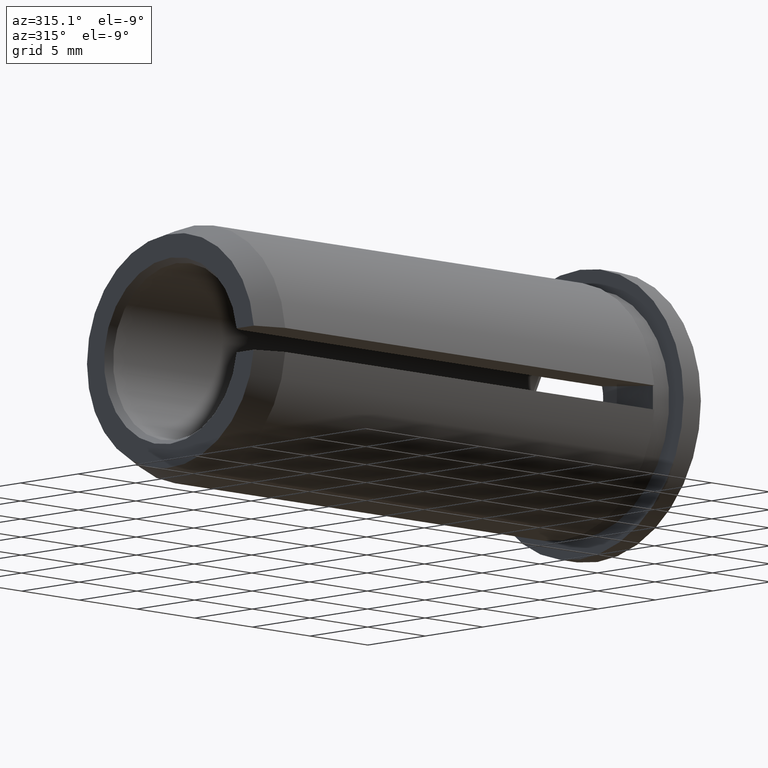
[diagram: clean part render]
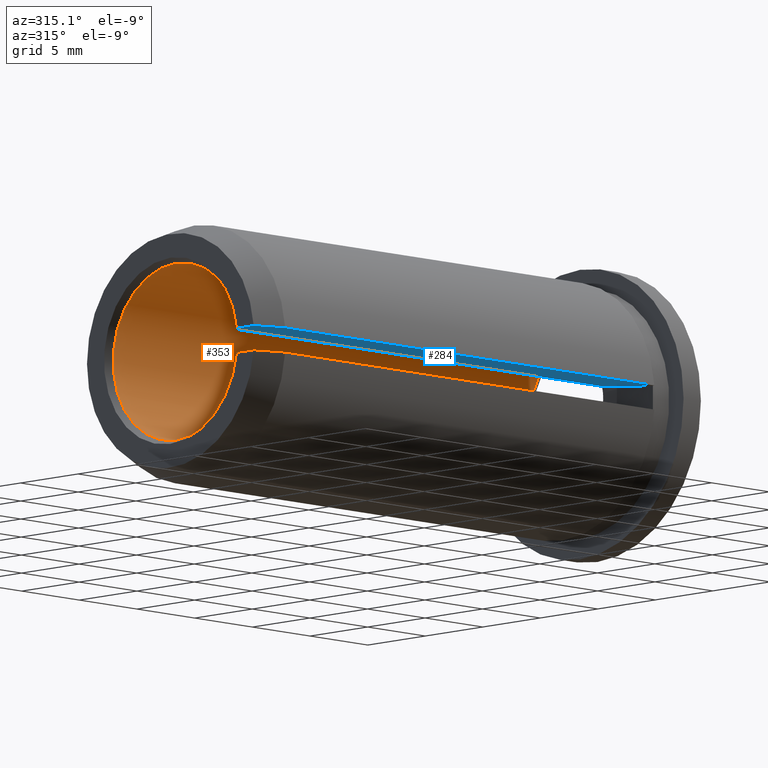
[diagram: same view with the hole feature highlighted: cylindrical wall and planar end face, labeled with their STEP entity ids]
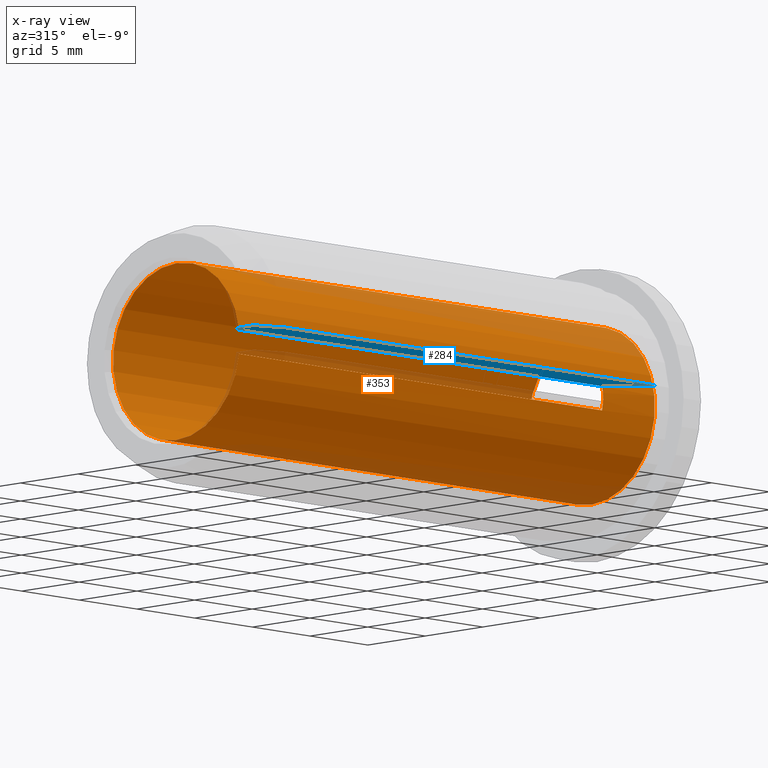
[diagram: x-ray of the same camera — body ghosted, the hole faces saturated]
A machine part, auxiliary view. The highlighted faces form one hole feature of diameter 11 mm: the cylindrical wall (entity #353, orange) and its adjacent planar end face (entity #284, blue) — they share a circular edge in the B-rep.
The next image is the same camera in x-ray (body ghosted, the hole faces saturated) — the bore reads through the body.
Wall:
#5 = CARTESIAN_POINT ( 'NONE',  ( -5.026359045876161800, -5.448623679425841400, -0.7500000000000000000 ) ) ;
#24 = CARTESIAN_POINT ( 'NONE',  ( -36.50000000000000000, -5.448623679425841400, -0.7500000000000000000 ) ) ;
#25 = LINE ( 'NONE', #48, #281 ) ;
#35 = CARTESIAN_POINT ( 'NONE',  ( -4.961795163846606900, -5.517448399587009600, 0.2500000000000010000 ) ) ;
#37 = EDGE_CURVE ( 'NONE', #159, #406, #178, .T. ) ;
#48 = CARTESIAN_POINT ( 'NONE',  ( -38.58775536857143600, -5.448623679425841400, -0.7500000000000000000 ) ) ;
#56 = ORIENTED_EDGE ( 'NONE', *, *, #369, .T. ) ;
#58 = EDGE_CURVE ( 'NONE', #231, #231, #208, .T. ) ;
#61 = EDGE_LOOP ( 'NONE', ( #363 ) ) ;
#73 = CARTESIAN_POINT ( 'NONE',  ( -38.58775536857143600, -5.448623679425841400, 0.7500000000000000000 ) ) ;
#83 = FACE_OUTER_BOUND ( 'NONE', #61, .T. ) ;
#91 = ORIENTED_EDGE ( 'NONE', *, *, #325, .T. ) ;
#100 = CARTESIAN_POINT ( 'NONE',  ( -5.026359045876161800, -5.448623679425841400, 0.7500000000000000000 ) ) ;
#103 = DIRECTION ( 'NONE',  ( 0.0000000000000000000, 0.0000000000000000000, 1.000000000000000000 ) ) ;
#107 = CIRCLE ( 'NONE', #350, 5.500000000000000000 ) ;
#121 = DIRECTION ( 'NONE',  ( 1.000000000000000000, 0.0000000000000000000, 0.0000000000000000000 ) ) ;
#122 = DIRECTION ( 'NONE',  ( 0.0000000000000000000, 0.0000000000000000000, 1.000000000000000000 ) ) ;
#144 = DIRECTION ( 'NONE',  ( -1.000000000000000000, -0.0000000000000000000, -0.0000000000000000000 ) ) ;
#148 = VERTEX_POINT ( 'NONE', #151 ) ;
#151 = CARTESIAN_POINT ( 'NONE',  ( -36.50000000000000000, -5.448623679425841400, 0.7500000000000000000 ) ) ;
#159 = VERTEX_POINT ( 'NONE', #381 ) ;
#160 = EDGE_CURVE ( 'NONE', #148, #406, #335, .T. ) ;
#178 = B_SPLINE_CURVE_WITH_KNOTS ( 'NONE', 3,
 ( #5, #302, #35, #100 ),
 .UNSPECIFIED., .F., .F.,
 ( 4, 4 ),
 ( 0.0000000000000000000, 0.001500000000000000000 ),
 .UNSPECIFIED. ) ;
#182 = DIRECTION ( 'NONE',  ( 1.000000000000000000, 0.0000000000000000000, 0.0000000000000000000 ) ) ;
#205 = CARTESIAN_POINT ( 'NONE',  ( -0.5000000000000004400, 0.0000000000000000000, 0.0000000000000000000 ) ) ;
#208 = CIRCLE ( 'NONE', #233, 5.500000000000000000 ) ;
#227 = FACE_OUTER_BOUND ( 'NONE', #312, .T. ) ;
#231 = VERTEX_POINT ( 'NONE', #324 ) ;
#233 = AXIS2_PLACEMENT_3D ( 'NONE', #205, #144, #103 ) ;
#244 = ORIENTED_EDGE ( 'NONE', *, *, #37, .T. ) ;
#245 = CARTESIAN_POINT ( 'NONE',  ( -38.58775536857143600, 0.0000000000000000000, 0.0000000000000000000 ) ) ;
#262 = ORIENTED_EDGE ( 'NONE', *, *, #160, .F. ) ;
#281 = VECTOR ( 'NONE', #121, 1000.000000000000000 ) ;
#286 = CYLINDRICAL_SURFACE ( 'NONE', #303, 5.500000000000000000 ) ;
#302 = CARTESIAN_POINT ( 'NONE',  ( -4.961795163846599800, -5.517448399587010500, -0.2499999999999996700 ) ) ;
#303 = AXIS2_PLACEMENT_3D ( 'NONE', #245, #313, #418 ) ;
#312 = EDGE_LOOP ( 'NONE', ( #56, #91, #244, #262 ) ) ;
#313 = DIRECTION ( 'NONE',  ( -1.000000000000000000, -0.0000000000000000000, -0.0000000000000000000 ) ) ;
#316 = DIRECTION ( 'NONE',  ( -1.000000000000000000, -0.0000000000000000000, -0.0000000000000000000 ) ) ;
#324 = CARTESIAN_POINT ( 'NONE',  ( -0.5000000000000004400, 0.0000000000000000000, 5.500000000000000000 ) ) ;
#325 = EDGE_CURVE ( 'NONE', #394, #159, #25, .T. ) ;
#335 = LINE ( 'NONE', #73, #366 ) ;
#350 = AXIS2_PLACEMENT_3D ( 'NONE', #384, #316, #122 ) ;
#353 = ADVANCED_FACE ( 'NONE', ( #83, #227 ), #286, .F. ) ;
#356 = CARTESIAN_POINT ( 'NONE',  ( -5.026359045876161800, -5.448623679425841400, 0.7500000000000000000 ) ) ;
#363 = ORIENTED_EDGE ( 'NONE', *, *, #58, .F. ) ;
#366 = VECTOR ( 'NONE', #182, 1000.000000000000000 ) ;
#369 = EDGE_CURVE ( 'NONE', #148, #394, #107, .T. ) ;
#381 = CARTESIAN_POINT ( 'NONE',  ( -5.026359045876161800, -5.448623679425841400, -0.7500000000000000000 ) ) ;
#384 = CARTESIAN_POINT ( 'NONE',  ( -36.50000000000000000, 0.0000000000000000000, 0.0000000000000000000 ) ) ;
#394 = VERTEX_POINT ( 'NONE', #24 ) ;
#406 = VERTEX_POINT ( 'NONE', #356 ) ;
#418 = DIRECTION ( 'NONE',  ( 0.0000000000000000000, 0.0000000000000000000, 1.000000000000000000 ) ) ;
End face:
#10 = B_SPLINE_CURVE_WITH_KNOTS ( 'NONE', 3,
 ( #270, #239, #271, #413 ),
 .UNSPECIFIED., .F., .F.,
 ( 4, 4 ),
 ( 0.009711911398750116400, 0.01184148182100318500 ),
 .UNSPECIFIED. ) ;
#20 = DIRECTION ( 'NONE',  ( 0.0000000000000000000, 1.000000000000000000, 0.0000000000000000000 ) ) ;
#33 = LINE ( 'NONE', #234, #378 ) ;
#36 = CARTESIAN_POINT ( 'NONE',  ( -37.00000000000000000, -5.739883257861286800, 0.7500000000000000000 ) ) ;
#65 = VECTOR ( 'NONE', #20, 1000.000000000000000 ) ;
#67 = AXIS2_PLACEMENT_3D ( 'NONE', #129, #130, #253 ) ;
#71 = EDGE_CURVE ( 'NONE', #171, #275, #294, .T. ) ;
#73 = CARTESIAN_POINT ( 'NONE',  ( -38.58775536857143600, -5.448623679425841400, 0.7500000000000000000 ) ) ;
#75 = CARTESIAN_POINT ( 'NONE',  ( -36.83331444535005500, -5.642829254337529600, 0.7500000000000000000 ) ) ;
#82 = DIRECTION ( 'NONE',  ( -1.000000000000000000, 0.0000000000000000000, 0.0000000000000000000 ) ) ;
#101 = VERTEX_POINT ( 'NONE', #36 ) ;
#110 = EDGE_CURVE ( 'NONE', #275, #379, #33, .T. ) ;
#115 = ORIENTED_EDGE ( 'NONE', *, *, #170, .T. ) ;
#129 = CARTESIAN_POINT ( 'NONE',  ( -27.99999999999999600, -27.00000000000000000, 0.7500000000000000000 ) ) ;
#130 = DIRECTION ( 'NONE',  ( 0.0000000000000000000, 0.0000000000000000000, 1.000000000000000000 ) ) ;
#148 = VERTEX_POINT ( 'NONE', #151 ) ;
#151 = CARTESIAN_POINT ( 'NONE',  ( -36.50000000000000000, -5.448623679425841400, 0.7500000000000000000 ) ) ;
#154 = PLANE ( 'NONE',  #279 ) ;
#160 = EDGE_CURVE ( 'NONE', #148, #406, #335, .T. ) ;
#163 = ORIENTED_EDGE ( 'NONE', *, *, #160, .T. ) ;
#170 = EDGE_CURVE ( 'NONE', #101, #148, #269, .T. ) ;
#171 = VERTEX_POINT ( 'NONE', #408 ) ;
#172 = ORIENTED_EDGE ( 'NONE', *, *, #410, .F. ) ;
#180 = CARTESIAN_POINT ( 'NONE',  ( -36.50000000000000000, -5.448623679425841400, 0.7500000000000000000 ) ) ;
#182 = DIRECTION ( 'NONE',  ( 1.000000000000000000, 0.0000000000000000000, 0.0000000000000000000 ) ) ;
#186 = FACE_OUTER_BOUND ( 'NONE', #232, .T. ) ;
#187 = CARTESIAN_POINT ( 'NONE',  ( -27.99999999999999600, -27.00000000000000000, 0.7500000000000000000 ) ) ;
#192 = ORIENTED_EDGE ( 'NONE', *, *, #110, .T. ) ;
#193 = ORIENTED_EDGE ( 'NONE', *, *, #215, .T. ) ;
#215 = EDGE_CURVE ( 'NONE', #379, #358, #10, .T. ) ;
#216 = CARTESIAN_POINT ( 'NONE',  ( -34.99999999999999300, -7.964766161036994400, 0.7500000000000000000 ) ) ;
#223 = CIRCLE ( 'NONE', #67, 31.50000000000000700 ) ;
#232 = EDGE_LOOP ( 'NONE', ( #163, #172, #327, #192, #193, #307, #115 ) ) ;
#234 = CARTESIAN_POINT ( 'NONE',  ( -38.58775536857143600, -7.964766161036994400, 0.7500000000000000000 ) ) ;
#237 = LINE ( 'NONE', #315, #65 ) ;
#239 = CARTESIAN_POINT ( 'NONE',  ( -35.66670156923833400, -7.721033178614087300, 0.7500000000000000000 ) ) ;
#253 = DIRECTION ( 'NONE',  ( -1.000000000000000000, 0.0000000000000000000, 0.0000000000000000000 ) ) ;
#266 = DIRECTION ( 'NONE',  ( -1.000000000000000000, -0.0000000000000000000, -0.0000000000000000000 ) ) ;
#269 = B_SPLINE_CURVE_WITH_KNOTS ( 'NONE', 3,
 ( #405, #75, #345, #180 ),
 .UNSPECIFIED., .F., .F.,
 ( 4, 4 ),
 ( 0.006318320823388439600, 0.006896967145803828600 ),
 .UNSPECIFIED. ) ;
#270 = CARTESIAN_POINT ( 'NONE',  ( -34.99999999999999300, -7.964766161036994400, 0.7500000000000000000 ) ) ;
#271 = CARTESIAN_POINT ( 'NONE',  ( -36.33337186691171900, -7.477214302540265800, 0.7500000000000000000 ) ) ;
#274 = VECTOR ( 'NONE', #336, 1000.000000000000000 ) ;
#275 = VERTEX_POINT ( 'NONE', #322 ) ;
#279 = AXIS2_PLACEMENT_3D ( 'NONE', #187, #355, #82 ) ;
#284 = ADVANCED_FACE ( 'NONE', ( #186 ), #154, .T. ) ;
#294 = LINE ( 'NONE', #298, #274 ) ;
#298 = CARTESIAN_POINT ( 'NONE',  ( -3.000000000000000900, 7.750000000000000000, 0.7500000000000000000 ) ) ;
#307 = ORIENTED_EDGE ( 'NONE', *, *, #334, .T. ) ;
#315 = CARTESIAN_POINT ( 'NONE',  ( -37.00000000000000000, 7.272059531467589500, 0.7500000000000000000 ) ) ;
#322 = CARTESIAN_POINT ( 'NONE',  ( -3.000000000000002700, -7.964766161036996200, 0.7500000000000000000 ) ) ;
#327 = ORIENTED_EDGE ( 'NONE', *, *, #71, .T. ) ;
#334 = EDGE_CURVE ( 'NONE', #358, #101, #237, .T. ) ;
#335 = LINE ( 'NONE', #73, #366 ) ;
#336 = DIRECTION ( 'NONE',  ( 0.0000000000000000000, -1.000000000000000000, 0.0000000000000000000 ) ) ;
#345 = CARTESIAN_POINT ( 'NONE',  ( -36.66664677364383400, -5.545744458738215400, 0.7500000000000000000 ) ) ;
#355 = DIRECTION ( 'NONE',  ( -0.0000000000000000000, 0.0000000000000000000, -1.000000000000000000 ) ) ;
#356 = CARTESIAN_POINT ( 'NONE',  ( -5.026359045876161800, -5.448623679425841400, 0.7500000000000000000 ) ) ;
#358 = VERTEX_POINT ( 'NONE', #414 ) ;
#366 = VECTOR ( 'NONE', #182, 1000.000000000000000 ) ;
#378 = VECTOR ( 'NONE', #266, 1000.000000000000000 ) ;
#379 = VERTEX_POINT ( 'NONE', #216 ) ;
#405 = CARTESIAN_POINT ( 'NONE',  ( -37.00000000000000000, -5.739883257861286800, 0.7500000000000000000 ) ) ;
#406 = VERTEX_POINT ( 'NONE', #356 ) ;
#408 = CARTESIAN_POINT ( 'NONE',  ( -3.000000000000002700, -7.836232103263177400, 0.7500000000000000000 ) ) ;
#410 = EDGE_CURVE ( 'NONE', #171, #406, #223, .T. ) ;
#413 = CARTESIAN_POINT ( 'NONE',  ( -37.00000000000000000, -7.233280709968928700, 0.7500000000000000000 ) ) ;
#414 = CARTESIAN_POINT ( 'NONE',  ( -37.00000000000000000, -7.233280709968928700, 0.7500000000000000000 ) ) ;